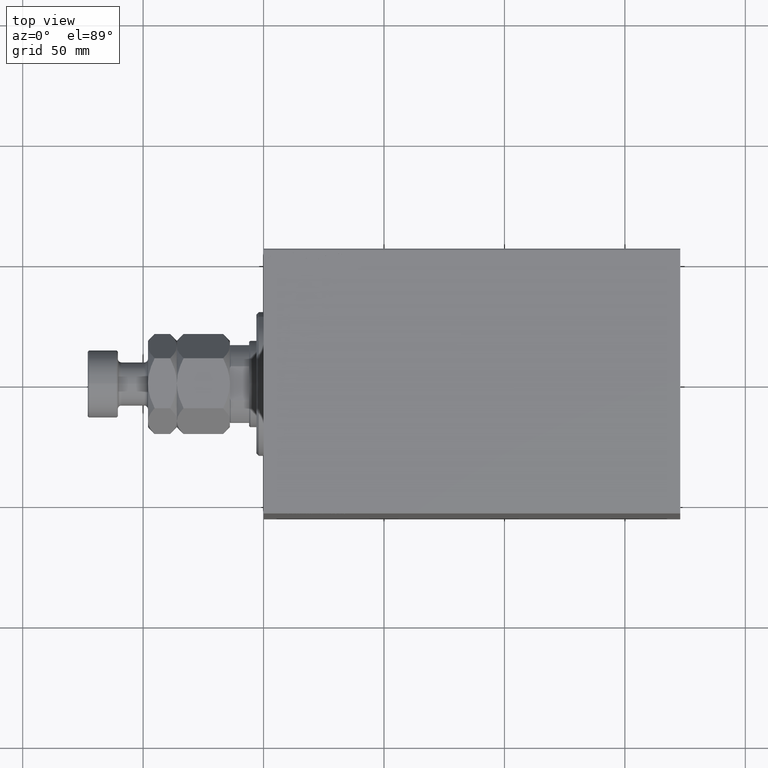
[diagram: clean part render]
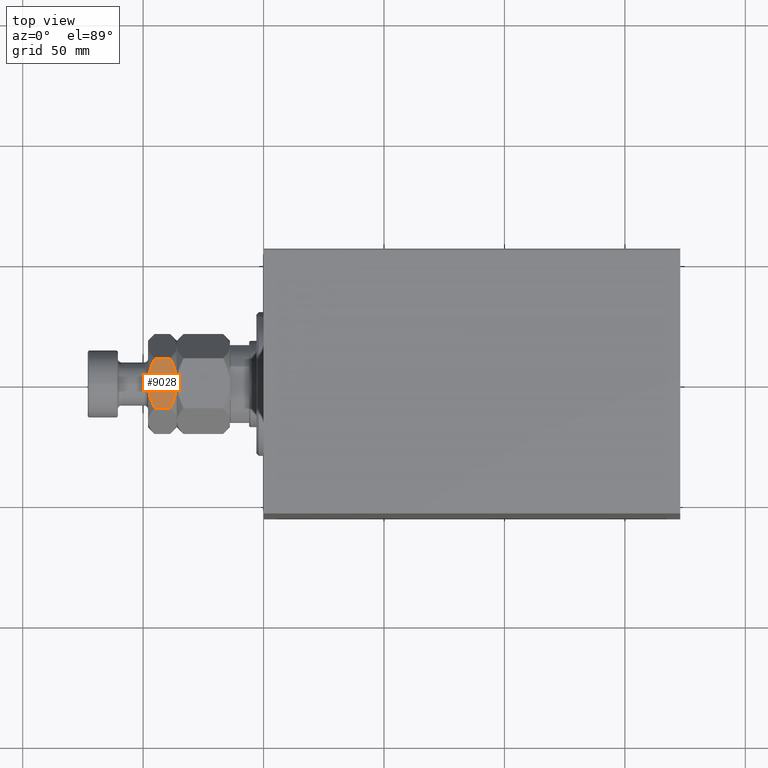
[diagram: same view with one face highlighted and labeled with its STEP entity id]
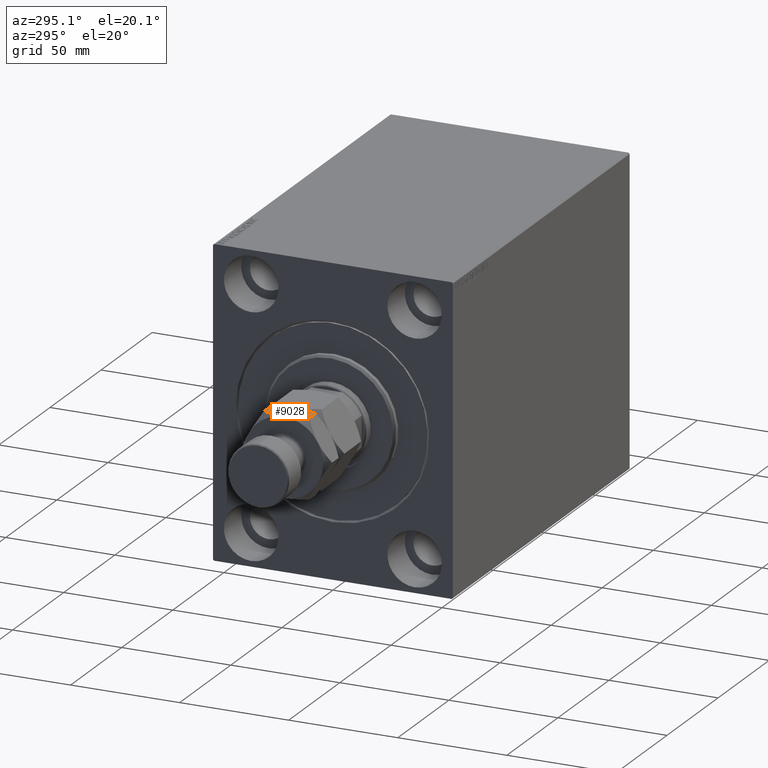
[diagram: same view with one face highlighted and labeled with its STEP entity id]
A machine part, top view. The second image highlights one B-rep face of the part: STEP entity #9028.
A second angle (auxiliary view) of the same face is appended — the face is thin or edge-on in the first view.
In plain terms, the highlighted planar face has unit normal (0, 0, -1).
Its self-contained STEP definition (entity closure, byte-faithful):
#611 = B_SPLINE_CURVE_WITH_KNOTS ( 'NONE', 3,
 ( #5925, #37691, #12613, #5703, #2477, #44845, #31010, #13298, #45064, #10074 ),
 .UNSPECIFIED., .F., .F.,
 ( 4, 2, 2, 2, 4 ),
 ( 0.02697565077241458401, 0.02968594935678132984, 0.03104109864896470450, 0.03239624794114807915, 0.03781684510988157083 ),
 .UNSPECIFIED. ) ;
#1053 = VECTOR ( 'NONE', #29973, 1000.000000000000000 ) ;
#1258 = CARTESIAN_POINT ( 'NONE',  ( 18.00000000000000000, -9.586360653924579367, 31.61836240491782490 ) ) ;
#1734 = ORIENTED_EDGE ( 'NONE', *, *, #35219, .F. ) ;
#1811 = CARTESIAN_POINT ( 'NONE',  ( 17.99999999999999645, 3.608119317998972342, 33.66311919894744165 ) ) ;
#2269 = B_SPLINE_CURVE_WITH_KNOTS ( 'NONE', 3,
 ( #22983, #23657, #5723, #13093, #33809, #1811, #16536, #23439, #16083, #44407, #13316, #30125 ),
 .UNSPECIFIED., .F., .F.,
 ( 4, 2, 2, 2, 2, 4 ),
 ( 0.03781684510988156389, 0.03916945699963351318, 0.04052206888938545554, 0.04322729266888934718, 0.04593251644839323189, 0.04863774022789712353 ),
 .UNSPECIFIED. ) ;
#2477 = CARTESIAN_POINT ( 'NONE',  ( 17.99999999999999645, 7.071263587154867913, 23.33493736021850751 ) ) ;
#5703 = CARTESIAN_POINT ( 'NONE',  ( 17.99999999999999645, 7.499647523188061271, 23.49604516194576576 ) ) ;
#5723 = CARTESIAN_POINT ( 'NONE',  ( 17.99999999999999645, 0.9151601729140473873, 33.98241383711814478 ) ) ;
#5925 = CARTESIAN_POINT ( 'NONE',  ( 17.99999999999999645, 10.39230484541326227, 24.78460969082651744 ) ) ;
#5955 = CARTESIAN_POINT ( 'NONE',  ( 17.99999999999999645, 10.39230484541326227, 34.00000000000000000 ) ) ;
#6238 = VERTEX_POINT ( 'NONE', #23917 ) ;
#6301 = CARTESIAN_POINT ( 'NONE',  ( 17.99999999999999289, -0.9151601729140479424, 22.01758616288185877 ) ) ;
#7938 = CARTESIAN_POINT ( 'NONE',  ( 17.99999999999999289, -7.499647523188055942, 32.50395483805424846 ) ) ;
#8158 = CARTESIAN_POINT ( 'NONE',  ( 17.99999999999999645, -7.071263587154868802, 32.66506263978149605 ) ) ;
#8644 = DIRECTION ( 'NONE',  ( -1.000000000000000000, 0.000000000000000000, 0.000000000000000000 ) ) ;
#8748 = AXIS2_PLACEMENT_3D ( 'NONE', #43869, #8644, #36710 ) ;
#8877 = VERTEX_POINT ( 'NONE', #29141 ) ;
#9028 = ADVANCED_FACE ( 'NONE', ( #40185 ), #19442, .F. ) ;
#10074 = CARTESIAN_POINT ( 'NONE',  ( 17.99999999999999645, 0.000000000000000000, 22.00000000000000000 ) ) ;
#11809 = VECTOR ( 'NONE', #43973, 1000.000000000000000 ) ;
#11844 = CARTESIAN_POINT ( 'NONE',  ( 17.99999999999999645, -8.764564343909466260, 31.99445466684792905 ) ) ;
#12613 = CARTESIAN_POINT ( 'NONE',  ( 17.99999999999999645, 8.764564343909469812, 24.00554533315207095 ) ) ;
#12640 = EDGE_CURVE ( 'NONE', #35093, #30000, #16319, .T. ) ;
#13093 = CARTESIAN_POINT ( 'NONE',  ( 17.99999999999999645, 1.821330908532694748, 33.91373064246911184 ) ) ;
#13226 = CARTESIAN_POINT ( 'NONE',  ( 17.99999999999999645, -10.39230484541326227, 24.78460969082651744 ) ) ;
#13298 = CARTESIAN_POINT ( 'NONE',  ( 18.00000000000000000, 3.604369495180869798, 22.28146385227300641 ) ) ;
#13316 = CARTESIAN_POINT ( 'NONE',  ( 18.00000000000000000, 9.586151772083033151, 31.61846684583860423 ) ) ;
#14383 = ORIENTED_EDGE ( 'NONE', *, *, #42113, .F. ) ;
#14390 = CARTESIAN_POINT ( 'NONE',  ( 17.99999999999999645, 10.39230484541326227, 31.21539030917348612 ) ) ;
#16083 = CARTESIAN_POINT ( 'NONE',  ( 17.99999999999999645, 7.072062784455392936, 32.67602753198517718 ) ) ;
#16156 = CARTESIAN_POINT ( 'NONE',  ( 17.99999999999999645, -10.39230484541326227, 34.00000000000000000 ) ) ;
#16213 = CARTESIAN_POINT ( 'NONE',  ( 17.99999999999999645, -2.270651277618684460, 22.13729652813022142 ) ) ;
#16313 = EDGE_CURVE ( 'NONE', #6238, #30018, #44528, .T. ) ;
#16319 = LINE ( 'NONE', #5955, #11809 ) ;
#16493 = VERTEX_POINT ( 'NONE', #34047 ) ;
#16536 = CARTESIAN_POINT ( 'NONE',  ( 17.99999999999999645, 4.485772026403929580, 33.46805093283005306 ) ) ;
#16891 = CARTESIAN_POINT ( 'NONE',  ( 18.00000000000000000, -9.586151772083033151, 24.38153315416141353 ) ) ;
#18976 = CARTESIAN_POINT ( 'NONE',  ( 17.99999999999999645, -5.778259303098551847, 33.09987941456177651 ) ) ;
#19442 = PLANE ( 'NONE',  #8748 ) ;
#20574 = CARTESIAN_POINT ( 'NONE',  ( 17.99999999999999645, 0.000000000000000000, 22.00000000000000000 ) ) ;
#21974 = CARTESIAN_POINT ( 'NONE',  ( 17.99999999999999645, -6.210685278230689832, 32.96294020522648083 ) ) ;
#22983 = CARTESIAN_POINT ( 'NONE',  ( 17.99999999999999645, 0.000000000000000000, 34.00000000000000000 ) ) ;
#23363 = ORIENTED_EDGE ( 'NONE', *, *, #27135, .F. ) ;
#23439 = CARTESIAN_POINT ( 'NONE',  ( 17.99999999999999645, 6.217733449719369254, 32.97445940828297495 ) ) ;
#23657 = CARTESIAN_POINT ( 'NONE',  ( 18.00000000000000355, 0.4559560457959385138, 34.00000000000001421 ) ) ;
#23917 = CARTESIAN_POINT ( 'NONE',  ( 17.99999999999999645, 0.000000000000000000, 22.00000000000000000 ) ) ;
#26798 = CARTESIAN_POINT ( 'NONE',  ( 18.00000000000000000, -3.608119317998971898, 22.33688080105256901 ) ) ;
#27135 = EDGE_CURVE ( 'NONE', #8877, #35093, #2269, .T. ) ;
#27268 = EDGE_CURVE ( 'NONE', #16493, #30018, #36869, .T. ) ;
#29115 = CARTESIAN_POINT ( 'NONE',  ( 18.00000000000000000, -1.827245545920534120, 34.00000000000001421 ) ) ;
#29141 = CARTESIAN_POINT ( 'NONE',  ( 17.99999999999999645, 0.000000000000000000, 34.00000000000000000 ) ) ;
#29973 = DIRECTION ( 'NONE',  ( -0.000000000000000000, -0.000000000000000000, -1.000000000000000000 ) ) ;
#30000 = VERTEX_POINT ( 'NONE', #40895 ) ;
#30018 = VERTEX_POINT ( 'NONE', #36423 ) ;
#30125 = CARTESIAN_POINT ( 'NONE',  ( 17.99999999999999645, 10.39230484541326227, 31.21539030917348612 ) ) ;
#30262 = CARTESIAN_POINT ( 'NONE',  ( 17.99999999999999289, -6.217733449719363925, 23.02554059171701439 ) ) ;
#30485 = CARTESIAN_POINT ( 'NONE',  ( 17.99999999999999289, -7.072062784455384055, 23.32397246801482282 ) ) ;
#31010 = CARTESIAN_POINT ( 'NONE',  ( 17.99999999999999645, 5.778259303098553623, 22.90012058543822349 ) ) ;
#31158 = CARTESIAN_POINT ( 'NONE',  ( 17.99999999999999645, -0.4559560457959390689, 21.99999999999999645 ) ) ;
#31638 = EDGE_LOOP ( 'NONE', ( #14383, #38547, #23363, #1734, #39339, #39267 ) ) ;
#33709 = CARTESIAN_POINT ( 'NONE',  ( 17.99999999999999645, -4.485772026403924251, 22.53194906716993984 ) ) ;
#33809 = CARTESIAN_POINT ( 'NONE',  ( 17.99999999999999289, 2.270651277618684016, 33.86270347186977858 ) ) ;
#34047 = CARTESIAN_POINT ( 'NONE',  ( 17.99999999999999645, -10.39230484541326227, 31.21539030917348612 ) ) ;
#35093 = VERTEX_POINT ( 'NONE', #14390 ) ;
#35219 = EDGE_CURVE ( 'NONE', #16493, #8877, #37515, .T. ) ;
#36423 = CARTESIAN_POINT ( 'NONE',  ( 17.99999999999999645, -10.39230484541326227, 24.78460969082651744 ) ) ;
#36465 = CARTESIAN_POINT ( 'NONE',  ( 17.99999999999999645, 0.000000000000000000, 34.00000000000000000 ) ) ;
#36684 = CARTESIAN_POINT ( 'NONE',  ( 17.99999999999999645, -10.39230484541326227, 31.21539030917348612 ) ) ;
#36710 = DIRECTION ( 'NONE',  ( 0.000000000000000000, 0.000000000000000000, 1.000000000000000000 ) ) ;
#36869 = LINE ( 'NONE', #16156, #1053 ) ;
#37515 = B_SPLINE_CURVE_WITH_KNOTS ( 'NONE', 3,
 ( #36684, #1258, #11844, #7938, #8158, #21974, #18976, #39928, #29115, #36465 ),
 .UNSPECIFIED., .F., .F.,
 ( 4, 2, 2, 2, 4 ),
 ( 0.02697565077241457707, 0.02968594935678132291, 0.03104109864896469756, 0.03239624794114807221, 0.03781684510988156389 ),
 .UNSPECIFIED. ) ;
#37691 = CARTESIAN_POINT ( 'NONE',  ( 18.00000000000000355, 9.586360653924579367, 24.38163759508217154 ) ) ;
#38547 = ORIENTED_EDGE ( 'NONE', *, *, #12640, .F. ) ;
#39267 = ORIENTED_EDGE ( 'NONE', *, *, #16313, .F. ) ;
#39339 = ORIENTED_EDGE ( 'NONE', *, *, #27268, .T. ) ;
#39928 = CARTESIAN_POINT ( 'NONE',  ( 17.99999999999999645, -3.604369495180868466, 33.71853614772700070 ) ) ;
#40185 = FACE_OUTER_BOUND ( 'NONE', #31638, .T. ) ;
#40895 = CARTESIAN_POINT ( 'NONE',  ( 17.99999999999999645, 10.39230484541326227, 24.78460969082651744 ) ) ;
#42113 = EDGE_CURVE ( 'NONE', #30000, #6238, #611, .T. ) ;
#43869 = CARTESIAN_POINT ( 'NONE',  ( 17.99999999999999645, -10.39230484541326227, 34.00000000000000000 ) ) ;
#43973 = DIRECTION ( 'NONE',  ( -0.000000000000000000, -0.000000000000000000, -1.000000000000000000 ) ) ;
#44407 = CARTESIAN_POINT ( 'NONE',  ( 18.00000000000000355, 8.761885744235337725, 31.99568842193386331 ) ) ;
#44528 = B_SPLINE_CURVE_WITH_KNOTS ( 'NONE', 3,
 ( #20574, #31158, #6301, #44771, #16213, #26798, #33709, #30262, #30485, #45219, #16891, #13226 ),
 .UNSPECIFIED., .F., .F.,
 ( 4, 2, 2, 2, 2, 4 ),
 ( 0.03781684510988157083, 0.03916945699963351318, 0.04052206888938546248, 0.04322729266888934718, 0.04593251644839323189, 0.04863774022789712353 ),
 .UNSPECIFIED. ) ;
#44771 = CARTESIAN_POINT ( 'NONE',  ( 18.00000000000000000, -1.821330908532695414, 22.08626935753087750 ) ) ;
#44845 = CARTESIAN_POINT ( 'NONE',  ( 18.00000000000000000, 6.210685278230689832, 23.03705979477352628 ) ) ;
#45064 = CARTESIAN_POINT ( 'NONE',  ( 17.99999999999999289, 1.827245545920531233, 22.00000000000000000 ) ) ;
#45219 = CARTESIAN_POINT ( 'NONE',  ( 18.00000000000000355, -8.761885744235328843, 24.00431157806612958 ) ) ;